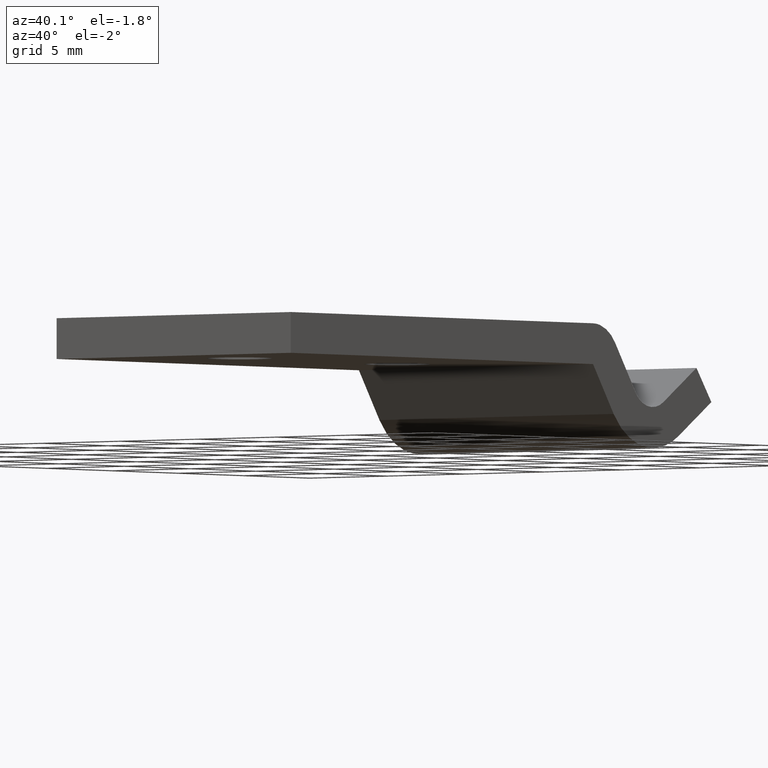
[diagram: clean part render]
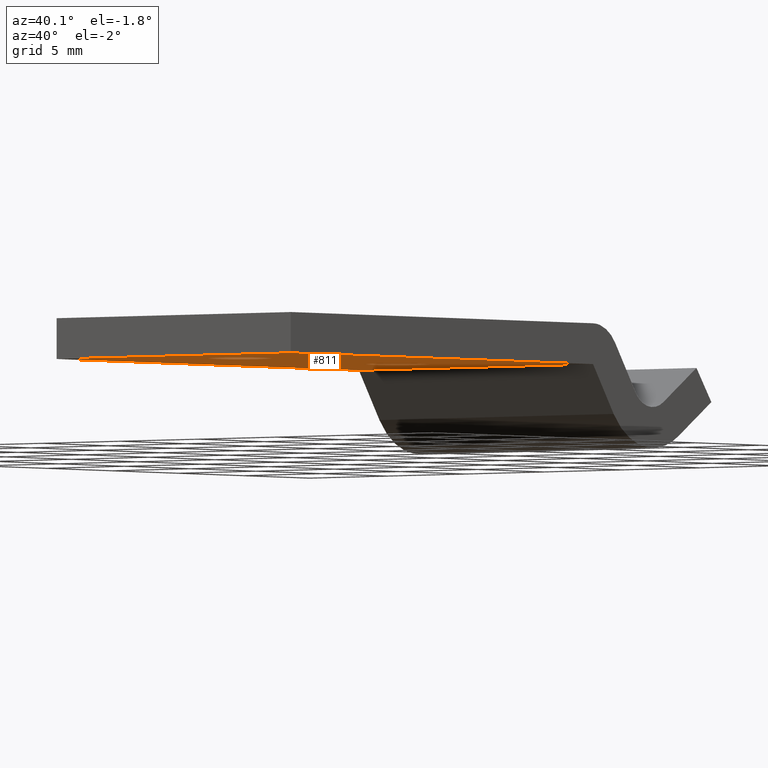
[diagram: same view with one face highlighted and labeled with its STEP entity id]
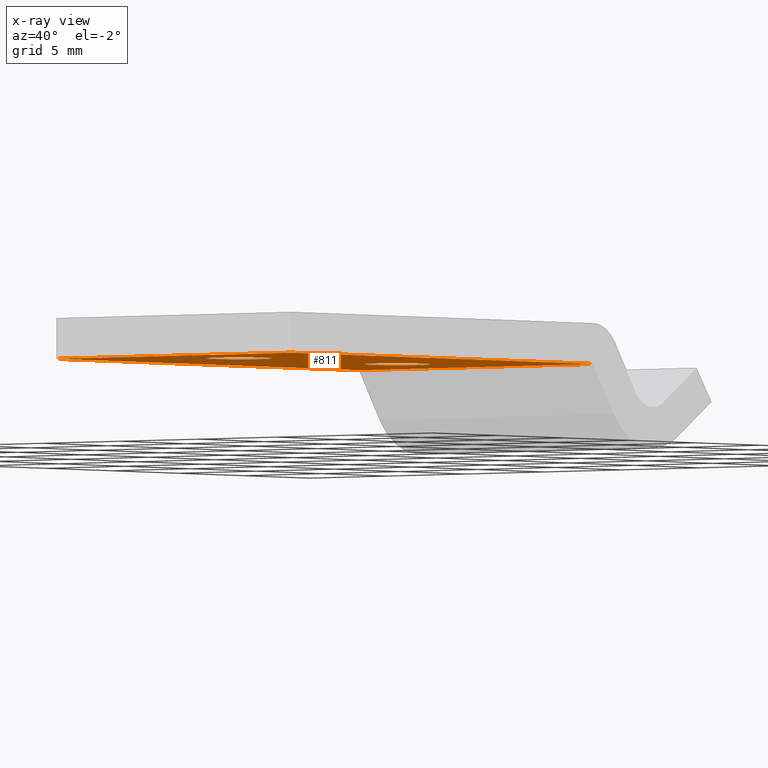
[diagram: x-ray of the same camera — body ghosted, the highlighted face saturated]
A machine part, auxiliary view. The second image highlights one B-rep face of the part: STEP entity #811.
The next image is the same camera in x-ray: the body ghosted, the highlighted face saturated — about 0% of this face is hidden behind the body in this view.
In plain terms, the highlighted face is a freeform B-spline surface patch.
Its self-contained STEP definition (entity closure, byte-faithful):
#115=CARTESIAN_POINT('',(1.121454701941932,18.141200837491940,-1.999999999999998));
#116=VERTEX_POINT('',#115);
#122=CARTESIAN_POINT('',(-1.223941E-015,15.400000000000000,-2.0));
#123=VERTEX_POINT('',#122);
#124=CARTESIAN_POINT('',(1.121454701941932,18.141200837491940,-1.999999999999997));
#125=CARTESIAN_POINT('',(1.599999999999999,17.670935882187614,-2.000000000000000));
#126=CARTESIAN_POINT('',(1.599999999999999,17.0,-2.0));
#127=CARTESIAN_POINT('',(1.599999999999998,15.399999999999997,-2.000000000000000));
#128=CARTESIAN_POINT('',(-1.223941E-015,15.400000000000000,-2.0));
#136=(BOUNDED_CURVE()B_SPLINE_CURVE(2,(#124,#125,#126,#127,#128),.UNSPECIFIED.,.F.,.U.)B_SPLINE_CURVE_WITH_KNOTS((3,2,3),(0.123683210427761,0.250000000000000,0.500000000000000),.UNSPECIFIED.)CURVE()GEOMETRIC_REPRESENTATION_ITEM()RATIONAL_B_SPLINE_CURVE((0.853569642040897,0.852010675648021,1.0,0.707106781186548,1.0))REPRESENTATION_ITEM(''));
#137=EDGE_CURVE('',#116,#123,#136,.T.);
#139=CARTESIAN_POINT('',(-1.263056544785496,17.982185402392709,-2.0));
#140=VERTEX_POINT('',#139);
#141=CARTESIAN_POINT('',(-1.223941E-015,15.400000000000000,-2.0));
#142=CARTESIAN_POINT('',(-1.600000000000001,15.399999999999997,-2.000000000000000));
#143=CARTESIAN_POINT('',(-1.600000000000001,17.0,-2.0));
#144=CARTESIAN_POINT('',(-1.600000000000002,17.548887742608766,-2.000000000000000));
#145=CARTESIAN_POINT('',(-1.263056544785496,17.982185402392705,-2.000000000000000));
#153=(BOUNDED_CURVE()B_SPLINE_CURVE(2,(#141,#142,#143,#144,#145),.UNSPECIFIED.,.F.,.U.)B_SPLINE_CURVE_WITH_KNOTS((3,2,3),(0.500000000000000,0.750000000000000,0.856197721244537),.UNSPECIFIED.)CURVE()GEOMETRIC_REPRESENTATION_ITEM()RATIONAL_B_SPLINE_CURVE((1.0,0.707106781186548,1.0,0.875581630376135,0.856866839432390))REPRESENTATION_ITEM(''));
#154=EDGE_CURVE('',#123,#140,#153,.T.);
#202=CARTESIAN_POINT('',(-1.223941E-015,18.600000000000001,-2.0));
#203=VERTEX_POINT('',#202);
#204=CARTESIAN_POINT('',(-1.263056544785496,17.982185402392712,-2.000000000000000));
#205=CARTESIAN_POINT('',(-0.782627951418396,18.599999999999994,-2.0));
#206=CARTESIAN_POINT('',(-1.223941E-015,18.600000000000001,-2.0));
#214=(BOUNDED_CURVE()B_SPLINE_CURVE(2,(#204,#205,#206),.UNSPECIFIED.,.F.,.U.)B_SPLINE_CURVE_WITH_KNOTS((3,3),(0.856197721244537,1.0),.UNSPECIFIED.)CURVE()GEOMETRIC_REPRESENTATION_ITEM()RATIONAL_B_SPLINE_CURVE((0.856866839432390,0.831525150810412,1.0))REPRESENTATION_ITEM(''));
#215=EDGE_CURVE('',#140,#203,#214,.T.);
#217=CARTESIAN_POINT('',(-1.223941E-015,18.600000000000001,-2.0));
#218=CARTESIAN_POINT('',(0.654577084346330,18.599999999999998,-2.000000000000000));
#219=CARTESIAN_POINT('',(1.121454701941932,18.141200837491940,-1.999999999999997));
#227=(BOUNDED_CURVE()B_SPLINE_CURVE(2,(#217,#218,#219),.UNSPECIFIED.,.F.,.U.)B_SPLINE_CURVE_WITH_KNOTS((3,3),(0.0,0.123683210427761),.UNSPECIFIED.)CURVE()GEOMETRIC_REPRESENTATION_ITEM()RATIONAL_B_SPLINE_CURVE((1.0,0.855096105538526,0.853569642040897))REPRESENTATION_ITEM(''));
#228=EDGE_CURVE('',#203,#116,#227,.T.);
#305=CARTESIAN_POINT('',(1.121454701941934,6.141200837491939,-1.999999999999998));
#306=VERTEX_POINT('',#305);
#312=CARTESIAN_POINT('',(1.287180E-015,3.400000000000000,-2.0));
#313=VERTEX_POINT('',#312);
#314=CARTESIAN_POINT('',(1.121454701941934,6.141200837491939,-1.999999999999998));
#315=CARTESIAN_POINT('',(1.600000000000001,5.670935882187609,-2.0));
#316=CARTESIAN_POINT('',(1.600000000000001,5.0,-2.0));
#317=CARTESIAN_POINT('',(1.600000000000001,3.400000000000001,-2.000000000000000));
#318=CARTESIAN_POINT('',(1.287180E-015,3.400000000000000,-2.0));
#326=(BOUNDED_CURVE()B_SPLINE_CURVE(2,(#314,#315,#316,#317,#318),.UNSPECIFIED.,.F.,.U.)B_SPLINE_CURVE_WITH_KNOTS((3,2,3),(0.123683210427761,0.250000000000000,0.500000000000000),.UNSPECIFIED.)CURVE()GEOMETRIC_REPRESENTATION_ITEM()RATIONAL_B_SPLINE_CURVE((0.853569642040896,0.852010675648021,1.0,0.707106781186548,1.0))REPRESENTATION_ITEM(''));
#327=EDGE_CURVE('',#306,#313,#326,.T.);
#329=CARTESIAN_POINT('',(-1.263056544785492,5.982185402392711,-2.0));
#330=VERTEX_POINT('',#329);
#331=CARTESIAN_POINT('',(1.287180E-015,3.400000000000000,-2.0));
#332=CARTESIAN_POINT('',(-1.599999999999998,3.400000000000001,-2.000000000000000));
#333=CARTESIAN_POINT('',(-1.599999999999999,5.0,-2.0));
#334=CARTESIAN_POINT('',(-1.599999999999999,5.548887742608760,-2.0));
#335=CARTESIAN_POINT('',(-1.263056544785493,5.982185402392711,-2.000000000000000));
#343=(BOUNDED_CURVE()B_SPLINE_CURVE(2,(#331,#332,#333,#334,#335),.UNSPECIFIED.,.F.,.U.)B_SPLINE_CURVE_WITH_KNOTS((3,2,3),(0.500000000000000,0.750000000000000,0.856197721244537),.UNSPECIFIED.)CURVE()GEOMETRIC_REPRESENTATION_ITEM()RATIONAL_B_SPLINE_CURVE((1.0,0.707106781186548,1.0,0.875581630376135,0.856866839432390))REPRESENTATION_ITEM(''));
#344=EDGE_CURVE('',#313,#330,#343,.T.);
#392=CARTESIAN_POINT('',(1.287180E-015,6.600000000000000,-2.0));
#393=VERTEX_POINT('',#392);
#394=CARTESIAN_POINT('',(-1.263056544785493,5.982185402392711,-2.000000000000000));
#395=CARTESIAN_POINT('',(-0.782627951418390,6.600000000000000,-2.000000000000000));
#396=CARTESIAN_POINT('',(1.287180E-015,6.600000000000000,-2.0));
#404=(BOUNDED_CURVE()B_SPLINE_CURVE(2,(#394,#395,#396),.UNSPECIFIED.,.F.,.U.)B_SPLINE_CURVE_WITH_KNOTS((3,3),(0.856197721244537,1.0),.UNSPECIFIED.)CURVE()GEOMETRIC_REPRESENTATION_ITEM()RATIONAL_B_SPLINE_CURVE((0.856866839432390,0.831525150810413,1.0))REPRESENTATION_ITEM(''));
#405=EDGE_CURVE('',#330,#393,#404,.T.);
#407=CARTESIAN_POINT('',(1.287180E-015,6.600000000000000,-2.0));
#408=CARTESIAN_POINT('',(0.654577084346331,6.599999999999999,-2.000000000000000));
#409=CARTESIAN_POINT('',(1.121454701941934,6.141200837491939,-1.999999999999997));
#417=(BOUNDED_CURVE()B_SPLINE_CURVE(2,(#407,#408,#409),.UNSPECIFIED.,.F.,.U.)B_SPLINE_CURVE_WITH_KNOTS((3,3),(0.0,0.123683210427761),.UNSPECIFIED.)CURVE()GEOMETRIC_REPRESENTATION_ITEM()RATIONAL_B_SPLINE_CURVE((1.0,0.855096105538527,0.853569642040897))REPRESENTATION_ITEM(''));
#418=EDGE_CURVE('',#393,#306,#417,.T.);
#453=CARTESIAN_POINT('',(7.500000000000000,0.0,-2.0));
#454=VERTEX_POINT('',#453);
#460=CARTESIAN_POINT('',(7.500000000000000,23.0,-2.0));
#461=VERTEX_POINT('',#460);
#462=CARTESIAN_POINT('',(7.500000000000000,0.0,-2.0));
#463=CARTESIAN_POINT('',(7.500000000000000,23.0,-2.0));
#464=QUASI_UNIFORM_CURVE('',1,(#462,#463),.UNSPECIFIED.,.F.,.U.);
#465=EDGE_CURVE('',#454,#461,#464,.T.);
#621=CARTESIAN_POINT('',(-7.500000000000000,23.0,-2.0));
#622=VERTEX_POINT('',#621);
#628=CARTESIAN_POINT('',(-7.500000000000000,0.0,-2.0));
#629=VERTEX_POINT('',#628);
#630=CARTESIAN_POINT('',(-7.500000000000000,0.0,-2.0));
#631=CARTESIAN_POINT('',(-7.500000000000000,23.0,-2.0));
#632=QUASI_UNIFORM_CURVE('',1,(#630,#631),.UNSPECIFIED.,.F.,.U.);
#633=EDGE_CURVE('',#629,#622,#632,.T.);
#774=CARTESIAN_POINT('',(-7.500000000000000,23.0,-2.0));
#775=CARTESIAN_POINT('',(7.500000000000000,23.0,-2.0));
#776=QUASI_UNIFORM_CURVE('',1,(#774,#775),.UNSPECIFIED.,.F.,.U.);
#777=EDGE_CURVE('',#622,#461,#776,.T.);
#784=CARTESIAN_POINT('',(-8.249249970927087,-1.148849955421536,-2.0));
#785=CARTESIAN_POINT('',(-8.249249970927087,24.148850572329611,-2.0));
#786=CARTESIAN_POINT('',(8.249250373258441,-1.148849955421536,-2.0));
#787=CARTESIAN_POINT('',(8.249250373258441,24.148850572329611,-2.0));
#788=B_SPLINE_SURFACE_WITH_KNOTS('',1,1,((#784,#786),(#785,#787)),.UNSPECIFIED.,.F.,.F.,.U.,(2,2),(2,2),(0.0,25.297700527751150),(0.0,16.498500344185530),.UNSPECIFIED.);
#789=ORIENTED_EDGE('',*,*,#465,.F.);
#790=CARTESIAN_POINT('',(-7.500000000000000,0.0,-2.0));
#791=CARTESIAN_POINT('',(7.500000000000000,0.0,-2.0));
#792=QUASI_UNIFORM_CURVE('',1,(#790,#791),.UNSPECIFIED.,.F.,.U.);
#793=EDGE_CURVE('',#629,#454,#792,.T.);
#794=ORIENTED_EDGE('',*,*,#793,.F.);
#795=ORIENTED_EDGE('',*,*,#633,.T.);
#796=ORIENTED_EDGE('',*,*,#777,.T.);
#797=EDGE_LOOP('',(#789,#794,#795,#796));
#798=FACE_OUTER_BOUND('',#797,.T.);
#799=ORIENTED_EDGE('',*,*,#418,.F.);
#800=ORIENTED_EDGE('',*,*,#405,.F.);
#801=ORIENTED_EDGE('',*,*,#344,.F.);
#802=ORIENTED_EDGE('',*,*,#327,.F.);
#803=EDGE_LOOP('',(#799,#800,#801,#802));
#804=FACE_BOUND('',#803,.T.);
#805=ORIENTED_EDGE('',*,*,#228,.F.);
#806=ORIENTED_EDGE('',*,*,#215,.F.);
#807=ORIENTED_EDGE('',*,*,#154,.F.);
#808=ORIENTED_EDGE('',*,*,#137,.F.);
#809=EDGE_LOOP('',(#805,#806,#807,#808));
#810=FACE_BOUND('',#809,.T.);
#811=ADVANCED_FACE('',(#798,#804,#810),#788,.T.);